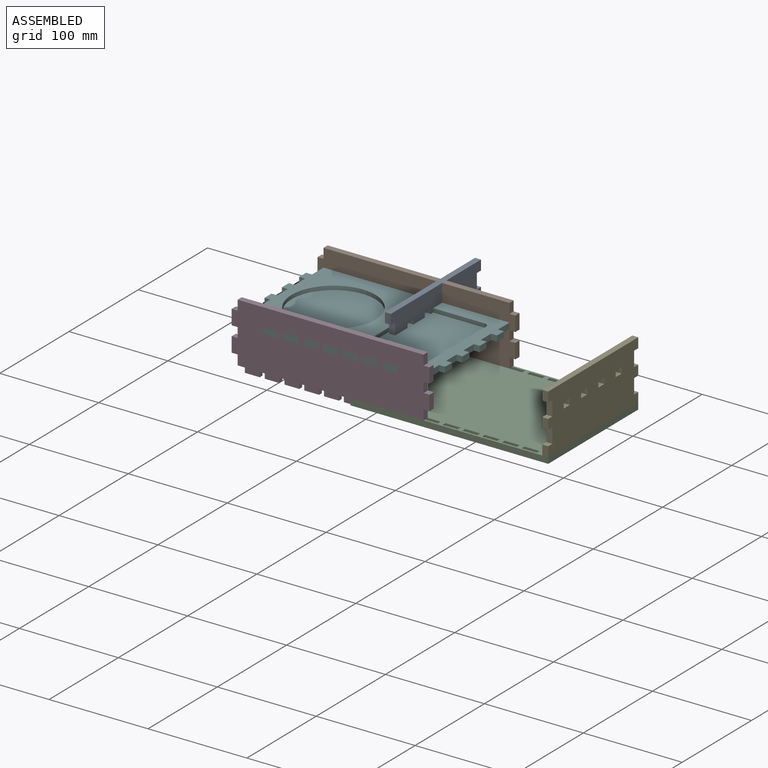
[diagram: assembled view]
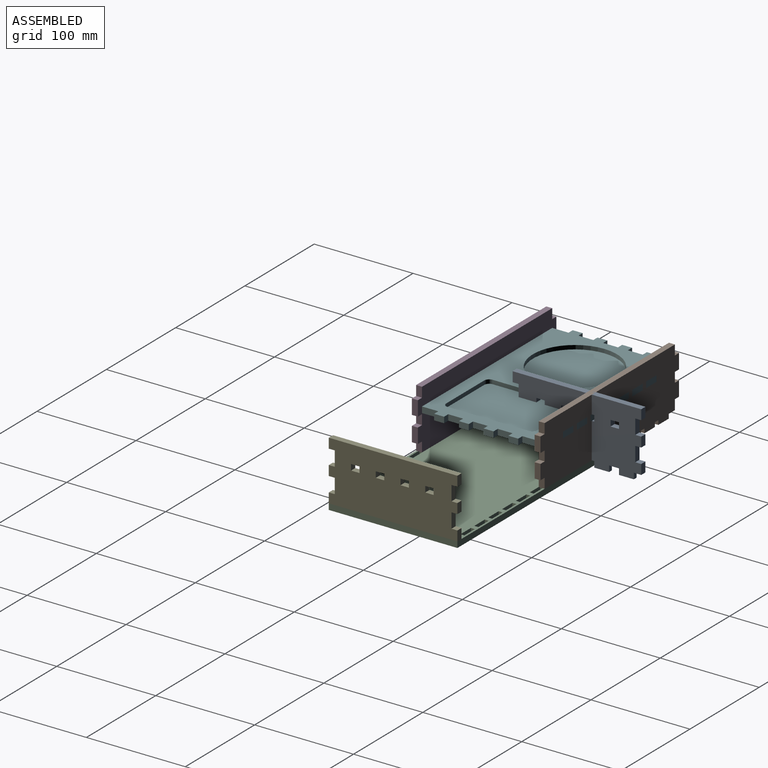
[diagram: assembled view, second angle]
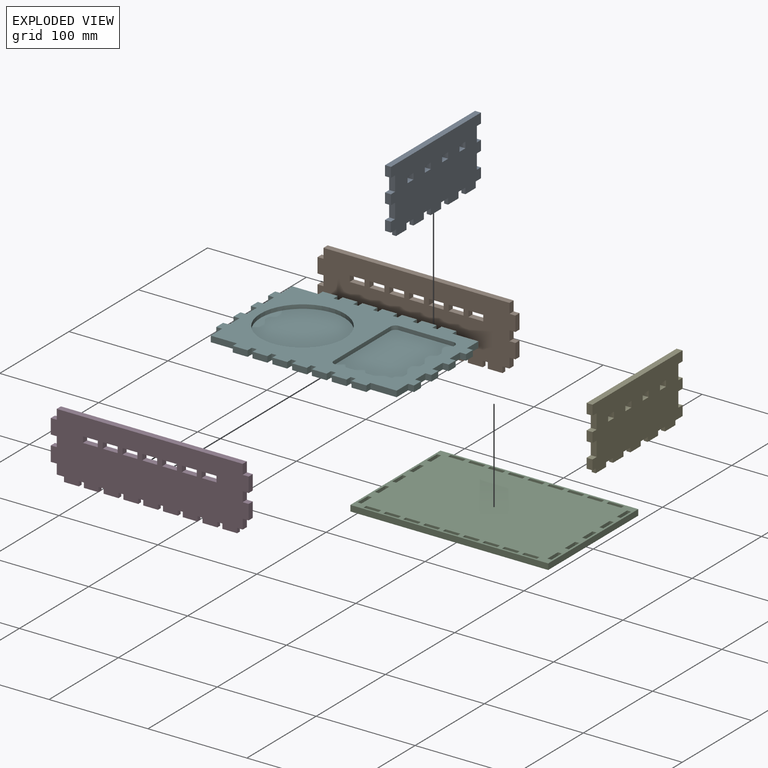
[diagram: exploded view]
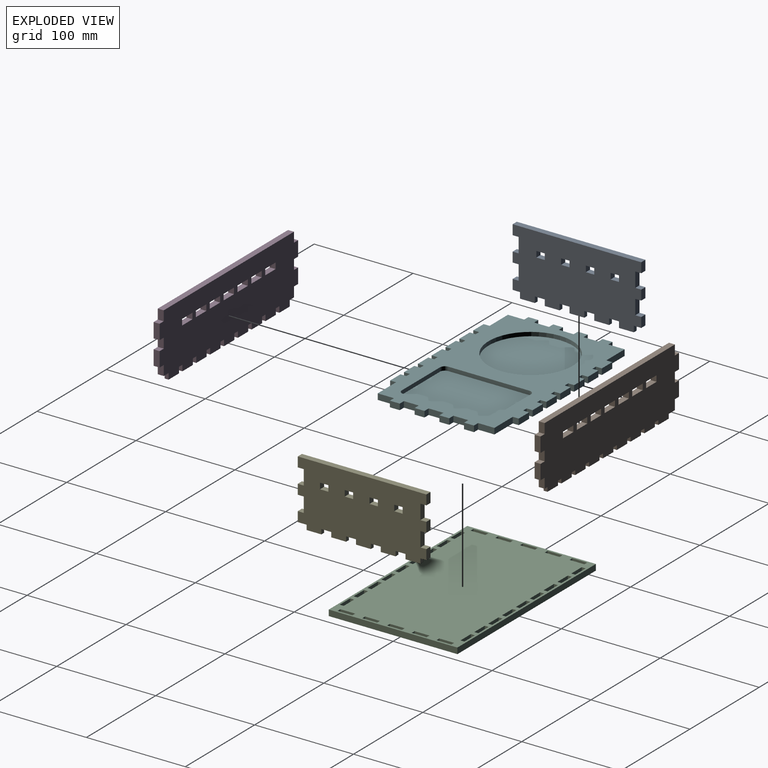
[diagram: exploded view, second angle]
ASSEMBLY  parts=6 mates=4
PART A: 58 faces, bbox 130x66x6 mm
  f0: plane 130x60mm, normal (0,0,-1), area 7236mm2, adj f1,f2,f3,f4,f5,f6,f7,f8
  f1: plane 6x6mm, normal (1,0,0), area 36mm2, adj f0,f2,f51,f52
  f2: plane 8.5x6mm, normal (0,-1,0), area 51mm2, adj f0,f1,f3,f52
  f3: plane 6x6mm, normal (-1,0,0), area 36mm2, adj f0,f2,f51,f52
  f4: plane 6x6mm, normal (1,0,0), area 36mm2, adj f0,f5,f47,f52
  f5: plane 8.5x6mm, normal (0,-1,0), area 51mm2, adj f0,f4,f6,f52
  f6: plane 6x6mm, normal (-1,0,0), area 36mm2, adj f0,f5,f47,f52
  f7: plane 6x6mm, normal (1,0,0), area 36mm2, adj f0,f8,f48,f52
  f8: plane 8.5x6mm, normal (0,-1,0), area 51mm2, adj f0,f7,f9,f52
  f9: plane 6x6mm, normal (-1,0,0), area 36mm2, adj f0,f8,f48,f52
  f10: plane 6x6mm, normal (1,0,0), area 36mm2, adj f0,f11,f49,f52
  f11: plane 8.5x6mm, normal (0,-1,0), area 51mm2, adj f0,f10,f12,f52
  f12: plane 6x6mm, normal (-1,0,0), area 36mm2, adj f0,f11,f49,f52
  f13: plane 15x6mm, normal (1,0,0), area 90mm2, adj f0,f14,f50,f52
  f14: plane 6x6mm, normal (0,-1,0), area 36mm2, adj f0,f13,f15,f52
  f15: plane 10x6mm, normal (1,0,0), area 60mm2, adj f0,f14,f16,f52
  f16: plane 130x6mm, normal (0,1,0), area 780mm2, adj f0,f15,f17,f52
  f17: plane 10x6mm, normal (-1,0,0), area 60mm2, adj f0,f16,f18,f52
  f18: plane 6x6mm, normal (0,-1,0), area 36mm2, adj f0,f17,f19,f52
  f19: plane 15x6mm, normal (-1,0,0), area 90mm2, adj f0,f18,f20,f52
  f20: plane 6x6mm, normal (0,1,0), area 36mm2, adj f0,f19,f21,f52
  f21: plane 10x6mm, normal (-1,0,0), area 60mm2, adj f0,f20,f22,f52
  f22: plane 6x6mm, normal (0,-1,0), area 36mm2, adj f0,f21,f23,f52
  f23: plane 15x6mm, normal (-1,0,0), area 90mm2, adj f0,f22,f24,f52
  f24: plane 6x6mm, normal (0,1,0), area 36mm2, adj f0,f23,f25,f52
  f25: plane 10x6mm, normal (-1,0,0), area 60mm2, adj f0,f24,f35,f52
  f26: plane 6x4mm, normal (-1,0,0), area 24mm2, adj f27,f35,f52,f57
  f27: plane 15x4mm, normal (0,-1,0), area 60mm2, adj f26,f28,f52,f57
  f28: plane 6x4mm, normal (1,0,0), area 24mm2, adj f27,f35,f52,f57
  f29: plane 6x4mm, normal (-1,0,0), area 24mm2, adj f30,f35,f52,f56
  f30: plane 15x4mm, normal (0,-1,0), area 60mm2, adj f29,f31,f52,f56
  f31: plane 6x4mm, normal (1,0,0), area 24mm2, adj f30,f35,f52,f56
  f32: plane 6x4mm, normal (-1,0,0), area 24mm2, adj f33,f35,f52,f55
  f33: plane 15x4mm, normal (0,-1,0), area 60mm2, adj f32,f34,f52,f55
  f34: plane 6x4mm, normal (1,0,0), area 24mm2, adj f33,f35,f52,f55
  f35: plane 130x6mm, normal (0,-1,0), area 480mm2, adj f0,f25,f26,f28,f29,f31,f32,f34
  f36: plane 6x4mm, normal (-1,0,0), area 24mm2, adj f35,f37,f52,f54
  f37: plane 15x4mm, normal (0,-1,0), area 60mm2, adj f36,f38,f52,f54
  f38: plane 6x4mm, normal (1,0,0), area 24mm2, adj f35,f37,f52,f54
  f39: plane 6x4mm, normal (-1,0,0), area 24mm2, adj f35,f40,f52,f53
  f40: plane 15x4mm, normal (0,-1,0), area 60mm2, adj f39,f41,f52,f53
  f41: plane 6x4mm, normal (1,0,0), area 24mm2, adj f35,f40,f52,f53
  f42: plane 10x6mm, normal (1,0,0), area 60mm2, adj f0,f35,f43,f52
  f43: plane 6x6mm, normal (0,1,0), area 36mm2, adj f0,f42,f44,f52
  f44: plane 15x6mm, normal (1,0,0), area 90mm2, adj f0,f43,f45,f52
  f45: plane 6x6mm, normal (0,-1,0), area 36mm2, adj f0,f44,f46,f52
  f46: plane 10x6mm, normal (1,0,0), area 60mm2, adj f0,f45,f50,f52
  f47: plane 8.5x6mm, normal (0,1,0), area 51mm2, adj f0,f4,f6,f52
  f48: plane 8.5x6mm, normal (0,1,0), area 51mm2, adj f0,f7,f9,f52
  f49: plane 8.5x6mm, normal (0,1,0), area 51mm2, adj f0,f10,f12,f52
  f50: plane 6x6mm, normal (0,1,0), area 36mm2, adj f0,f13,f46,f52
  f51: plane 8.5x6mm, normal (0,1,0), area 51mm2, adj f0,f1,f3,f52
  f52: plane 130x66mm, normal (0,0,1), area 7686mm2, adj f1,f2,f3,f4,f5,f6,f7,f8
  f53: plane 15x6mm, normal (0,0,-1), area 90mm2, adj f35,f39,f40,f41
  f54: plane 15x6mm, normal (0,0,-1), area 90mm2, adj f35,f36,f37,f38
  f55: plane 15x6mm, normal (0,0,-1), area 90mm2, adj f32,f33,f34,f35
  f56: plane 15x6mm, normal (0,0,-1), area 90mm2, adj f29,f30,f31,f35
  f57: plane 15x6mm, normal (0,0,-1), area 90mm2, adj f26,f27,f28,f35
PART B: 86 faces, bbox 200x66x6 mm
  f0: plane 200x60mm, normal (0,0,-1), area 11010mm2, adj f1,f2,f3,f4,f5,f6,f7,f8
  f1: plane 10x6mm, normal (1,0,0), area 60mm2, adj f0,f2,f75,f76
  f2: plane 188x6mm, normal (0,1,0), area 1128mm2, adj f0,f1,f3,f76
  f3: plane 10x6mm, normal (-1,0,0), area 60mm2, adj f0,f2,f4,f76
  f4: plane 6x6mm, normal (0,1,0), area 36mm2, adj f0,f3,f5,f76
  f5: plane 15x6mm, normal (-1,0,0), area 90mm2, adj f0,f4,f6,f76
  f6: plane 6x6mm, normal (0,-1,0), area 36mm2, adj f0,f5,f7,f76
  f7: plane 10x6mm, normal (-1,0,0), area 60mm2, adj f0,f6,f8,f76
  f8: plane 6x6mm, normal (0,1,0), area 36mm2, adj f0,f7,f9,f76
  f9: plane 15x6mm, normal (-1,0,0), area 90mm2, adj f0,f8,f10,f76
  f10: plane 6x6mm, normal (0,-1,0), area 36mm2, adj f0,f9,f11,f76
  f11: plane 10x6mm, normal (-1,0,0), area 60mm2, adj f0,f10,f39,f76
  f12: plane 6x4mm, normal (-1,0,0), area 24mm2, adj f13,f39,f76,f85
  f13: plane 15x4mm, normal (0,-1,0), area 60mm2, adj f12,f14,f76,f85
  f14: plane 6x4mm, normal (1,0,0), area 24mm2, adj f13,f39,f76,f85
  f15: plane 6x4mm, normal (-1,0,0), area 24mm2, adj f16,f39,f76,f84
  f16: plane 15x4mm, normal (0,-1,0), area 60mm2, adj f15,f17,f76,f84
  f17: plane 6x4mm, normal (1,0,0), area 24mm2, adj f16,f39,f76,f84
  f18: plane 6x4mm, normal (-1,0,0), area 24mm2, adj f19,f39,f76,f83
  f19: plane 15x4mm, normal (0,-1,0), area 60mm2, adj f18,f20,f76,f83
  f20: plane 6x4mm, normal (1,0,0), area 24mm2, adj f19,f39,f76,f83
  f21: plane 6x4mm, normal (-1,0,0), area 24mm2, adj f22,f39,f76,f82
  f22: plane 15x4mm, normal (0,-1,0), area 60mm2, adj f21,f23,f76,f82
  f23: plane 6x4mm, normal (1,0,0), area 24mm2, adj f22,f39,f76,f82
  f24: plane 6x4mm, normal (-1,0,0), area 24mm2, adj f25,f39,f76,f81
  f25: plane 15x4mm, normal (0,-1,0), area 60mm2, adj f24,f26,f76,f81
  f26: plane 6x4mm, normal (1,0,0), area 24mm2, adj f25,f39,f76,f81
  f27: plane 6x4mm, normal (-1,0,0), area 24mm2, adj f28,f39,f76,f79
  f28: plane 15x4mm, normal (0,-1,0), area 60mm2, adj f27,f29,f76,f79
  f29: plane 6x4mm, normal (1,0,0), area 24mm2, adj f28,f39,f76,f79
  f30: plane 6x4mm, normal (-1,0,0), area 24mm2, adj f31,f39,f76,f80
  f31: plane 15x4mm, normal (0,-1,0), area 60mm2, adj f30,f32,f76,f80
  f32: plane 6x4mm, normal (1,0,0), area 24mm2, adj f31,f39,f76,f80
  f33: plane 6x4mm, normal (-1,0,0), area 24mm2, adj f34,f39,f76,f78
  f34: plane 15x4mm, normal (0,-1,0), area 60mm2, adj f33,f35,f76,f78
  f35: plane 6x4mm, normal (1,0,0), area 24mm2, adj f34,f39,f76,f78
  f36: plane 6x4mm, normal (-1,0,0), area 24mm2, adj f37,f39,f76,f77
  f37: plane 15x4mm, normal (0,-1,0), area 60mm2, adj f36,f38,f76,f77
  f38: plane 6x4mm, normal (1,0,0), area 24mm2, adj f37,f39,f76,f77
  f39: plane 188x6mm, normal (0,-1,0), area 588mm2, adj f0,f11,f12,f14,f15,f17,f18,f20
  f40: plane 10x6mm, normal (1,0,0), area 60mm2, adj f0,f39,f41,f76
  f41: plane 6x6mm, normal (0,-1,0), area 36mm2, adj f0,f40,f42,f76
  f42: plane 15x6mm, normal (1,0,0), area 90mm2, adj f0,f41,f43,f76
  f43: plane 6x6mm, normal (0,1,0), area 36mm2, adj f0,f42,f44,f76
  f44: plane 10x6mm, normal (1,0,0), area 60mm2, adj f0,f43,f45,f76
  f45: plane 6x6mm, normal (0,-1,0), area 36mm2, adj f0,f44,f46,f76
  f46: plane 15x6mm, normal (1,0,0), area 90mm2, adj f0,f45,f75,f76
  f47: plane 6x6mm, normal (1,0,0), area 36mm2, adj f0,f48,f68,f76
  f48: plane 15x6mm, normal (0,-1,0), area 90mm2, adj f0,f47,f49,f76
  f49: plane 6x6mm, normal (-1,0,0), area 36mm2, adj f0,f48,f68,f76
  f50: plane 6x6mm, normal (1,0,0), area 36mm2, adj f0,f51,f69,f76
  f51: plane 15x6mm, normal (0,-1,0), area 90mm2, adj f0,f50,f52,f76
  f52: plane 6x6mm, normal (-1,0,0), area 36mm2, adj f0,f51,f69,f76
  f53: plane 6x6mm, normal (1,0,0), area 36mm2, adj f0,f54,f70,f76
  f54: plane 15x6mm, normal (0,-1,0), area 90mm2, adj f0,f53,f55,f76
  f55: plane 6x6mm, normal (-1,0,0), area 36mm2, adj f0,f54,f70,f76
  f56: plane 6x6mm, normal (1,0,0), area 36mm2, adj f0,f57,f71,f76
  f57: plane 15x6mm, normal (0,-1,0), area 90mm2, adj f0,f56,f58,f76
  f58: plane 6x6mm, normal (-1,0,0), area 36mm2, adj f0,f57,f71,f76
  f59: plane 6x6mm, normal (1,0,0), area 36mm2, adj f0,f60,f72,f76
  f60: plane 15x6mm, normal (0,-1,0), area 90mm2, adj f0,f59,f61,f76
  f61: plane 6x6mm, normal (-1,0,0), area 36mm2, adj f0,f60,f72,f76
  f62: plane 6x6mm, normal (1,0,0), area 36mm2, adj f0,f63,f73,f76
  f63: plane 15x6mm, normal (0,-1,0), area 90mm2, adj f0,f62,f64,f76
  f64: plane 6x6mm, normal (-1,0,0), area 36mm2, adj f0,f63,f73,f76
  f65: plane 6x6mm, normal (1,0,0), area 36mm2, adj f0,f66,f74,f76
  f66: plane 15x6mm, normal (0,-1,0), area 90mm2, adj f0,f65,f67,f76
  f67: plane 6x6mm, normal (-1,0,0), area 36mm2, adj f0,f66,f74,f76
  f68: plane 15x6mm, normal (0,1,0), area 90mm2, adj f0,f47,f49,f76
  f69: plane 15x6mm, normal (0,1,0), area 90mm2, adj f0,f50,f52,f76
  f70: plane 15x6mm, normal (0,1,0), area 90mm2, adj f0,f53,f55,f76
  f71: plane 15x6mm, normal (0,1,0), area 90mm2, adj f0,f56,f58,f76
  f72: plane 15x6mm, normal (0,1,0), area 90mm2, adj f0,f59,f61,f76
  f73: plane 15x6mm, normal (0,1,0), area 90mm2, adj f0,f62,f64,f76
  f74: plane 15x6mm, normal (0,1,0), area 90mm2, adj f0,f65,f67,f76
  f75: plane 6x6mm, normal (0,1,0), area 36mm2, adj f0,f1,f46,f76
  f76: plane 200x66mm, normal (0,0,1), area 11820mm2, adj f1,f2,f3,f4,f5,f6,f7,f8
  f77: plane 15x6mm, normal (0,0,-1), area 90mm2, adj f36,f37,f38,f39
  f78: plane 15x6mm, normal (0,0,-1), area 90mm2, adj f33,f34,f35,f39
  f79: plane 15x6mm, normal (0,0,-1), area 90mm2, adj f27,f28,f29,f39
  f80: plane 15x6mm, normal (0,0,-1), area 90mm2, adj f30,f31,f32,f39
  f81: plane 15x6mm, normal (0,0,-1), area 90mm2, adj f24,f25,f26,f39
  f82: plane 15x6mm, normal (0,0,-1), area 90mm2, adj f21,f22,f23,f39
  f83: plane 15x6mm, normal (0,0,-1), area 90mm2, adj f18,f19,f20,f39
  f84: plane 15x6mm, normal (0,0,-1), area 90mm2, adj f15,f16,f17,f39
  f85: plane 15x6mm, normal (0,0,-1), area 90mm2, adj f12,f13,f14,f39
PART C: 118 faces, bbox 200x130x6 mm
  f0: plane 200x6mm, normal (0,1,0), area 1200mm2, adj f1,f115,f116,f117
  f1: plane 130x6mm, normal (-1,0,0), area 780mm2, adj f0,f2,f116,f117
  f2: plane 200x6mm, normal (0,-1,0), area 1200mm2, adj f1,f115,f116,f117
  f3: plane 15x6mm, normal (1,0,0), area 90mm2, adj f4,f87,f116,f117
  f4: plane 6x4mm, normal (0,-1,0), area 24mm2, adj f3,f5,f116,f117
  f5: plane 15x6mm, normal (-1,0,0), area 90mm2, adj f4,f87,f116,f117
  f6: plane 6x4mm, normal (0,-1,0), area 24mm2, adj f7,f88,f116,f117
  f7: plane 15x6mm, normal (-1,0,0), area 90mm2, adj f6,f8,f116,f117
  f8: plane 6x4mm, normal (0,1,0), area 24mm2, adj f7,f88,f116,f117
  f9: plane 6x4mm, normal (1,0,0), area 24mm2, adj f10,f89,f116,f117
  f10: plane 15x6mm, normal (0,-1,0), area 90mm2, adj f9,f11,f116,f117
  f11: plane 6x4mm, normal (-1,0,0), area 24mm2, adj f10,f89,f116,f117
  f12: plane 15x6mm, normal (0,1,0), area 90mm2, adj f13,f90,f116,f117
  f13: plane 6x4mm, normal (1,0,0), area 24mm2, adj f12,f14,f116,f117
  f14: plane 15x6mm, normal (0,-1,0), area 90mm2, adj f13,f90,f116,f117
  f15: plane 15x6mm, normal (0,1,0), area 90mm2, adj f16,f91,f116,f117
  f16: plane 6x4mm, normal (1,0,0), area 24mm2, adj f15,f17,f116,f117
  f17: plane 15x6mm, normal (0,-1,0), area 90mm2, adj f16,f91,f116,f117
  f18: plane 15x6mm, normal (0,1,0), area 90mm2, adj f19,f92,f116,f117
  f19: plane 6x4mm, normal (1,0,0), area 24mm2, adj f18,f20,f116,f117
  f20: plane 15x6mm, normal (0,-1,0), area 90mm2, adj f19,f92,f116,f117
  f21: plane 15x6mm, normal (0,1,0), area 90mm2, adj f22,f93,f116,f117
  f22: plane 6x4mm, normal (1,0,0), area 24mm2, adj f21,f23,f116,f117
  f23: plane 15x6mm, normal (0,-1,0), area 90mm2, adj f22,f93,f116,f117
  f24: plane 15x6mm, normal (0,1,0), area 90mm2, adj f25,f94,f116,f117
  f25: plane 6x4mm, normal (1,0,0), area 24mm2, adj f24,f26,f116,f117
  f26: plane 15x6mm, normal (0,-1,0), area 90mm2, adj f25,f94,f116,f117
  f27: plane 15x6mm, normal (0,1,0), area 90mm2, adj f28,f95,f116,f117
  f28: plane 6x4mm, normal (1,0,0), area 24mm2, adj f27,f29,f116,f117
  f29: plane 15x6mm, normal (0,-1,0), area 90mm2, adj f28,f95,f116,f117
  f30: plane 15x6mm, normal (1,0,0), area 90mm2, adj f31,f96,f116,f117
  f31: plane 6x4mm, normal (0,-1,0), area 24mm2, adj f30,f32,f116,f117
  f32: plane 15x6mm, normal (-1,0,0), area 90mm2, adj f31,f96,f116,f117
  f33: plane 15x6mm, normal (1,0,0), area 90mm2, adj f34,f97,f116,f117
  f34: plane 6x4mm, normal (0,-1,0), area 24mm2, adj f33,f35,f116,f117
  f35: plane 15x6mm, normal (-1,0,0), area 90mm2, adj f34,f97,f116,f117
  f36: plane 15x6mm, normal (1,0,0), area 90mm2, adj f37,f98,f116,f117
  f37: plane 6x4mm, normal (0,-1,0), area 24mm2, adj f36,f38,f116,f117
  f38: plane 15x6mm, normal (-1,0,0), area 90mm2, adj f37,f98,f116,f117
  f39: plane 15x6mm, normal (1,0,0), area 90mm2, adj f40,f99,f116,f117
  f40: plane 6x4mm, normal (0,-1,0), area 24mm2, adj f39,f41,f116,f117
  f41: plane 15x6mm, normal (-1,0,0), area 90mm2, adj f40,f99,f116,f117
  f42: plane 15x6mm, normal (0,1,0), area 90mm2, adj f43,f100,f116,f117
  f43: plane 6x4mm, normal (1,0,0), area 24mm2, adj f42,f44,f116,f117
  f44: plane 15x6mm, normal (0,-1,0), area 90mm2, adj f43,f100,f116,f117
  f45: plane 15x6mm, normal (1,0,0), area 90mm2, adj f46,f101,f116,f117
  f46: plane 6x4mm, normal (0,-1,0), area 24mm2, adj f45,f47,f116,f117
  f47: plane 15x6mm, normal (-1,0,0), area 90mm2, adj f46,f101,f116,f117
  f48: plane 6x4mm, normal (1,0,0), area 24mm2, adj f49,f102,f116,f117
  f49: plane 15x6mm, normal (0,-1,0), area 90mm2, adj f48,f50,f116,f117
  f50: plane 6x4mm, normal (-1,0,0), area 24mm2, adj f49,f102,f116,f117
  f51: plane 6x4mm, normal (1,0,0), area 24mm2, adj f52,f103,f116,f117
  f52: plane 15x6mm, normal (0,-1,0), area 90mm2, adj f51,f53,f116,f117
  f53: plane 6x4mm, normal (-1,0,0), area 24mm2, adj f52,f103,f116,f117
  f54: plane 6x4mm, normal (1,0,0), area 24mm2, adj f55,f104,f116,f117
  f55: plane 15x6mm, normal (0,-1,0), area 90mm2, adj f54,f56,f116,f117
  f56: plane 6x4mm, normal (-1,0,0), area 24mm2, adj f55,f104,f116,f117
  f57: plane 6x4mm, normal (1,0,0), area 24mm2, adj f58,f105,f116,f117
  f58: plane 15x6mm, normal (0,-1,0), area 90mm2, adj f57,f59,f116,f117
  f59: plane 6x4mm, normal (-1,0,0), area 24mm2, adj f58,f105,f116,f117
  f60: plane 6x4mm, normal (1,0,0), area 24mm2, adj f61,f106,f116,f117
  f61: plane 15x6mm, normal (0,-1,0), area 90mm2, adj f60,f62,f116,f117
  f62: plane 6x4mm, normal (-1,0,0), area 24mm2, adj f61,f106,f116,f117
  f63: plane 6x4mm, normal (1,0,0), area 24mm2, adj f64,f107,f116,f117
  f64: plane 15x6mm, normal (0,-1,0), area 90mm2, adj f63,f65,f116,f117
  f65: plane 6x4mm, normal (-1,0,0), area 24mm2, adj f64,f107,f116,f117
  f66: plane 6x4mm, normal (1,0,0), area 24mm2, adj f67,f108,f116,f117
  f67: plane 15x6mm, normal (0,-1,0), area 90mm2, adj f66,f68,f116,f117
  f68: plane 6x4mm, normal (-1,0,0), area 24mm2, adj f67,f108,f116,f117
  f69: plane 6x4mm, normal (0,-1,0), area 24mm2, adj f70,f109,f116,f117
  f70: plane 15x6mm, normal (-1,0,0), area 90mm2, adj f69,f71,f116,f117
  f71: plane 6x4mm, normal (0,1,0), area 24mm2, adj f70,f109,f116,f117
  f72: plane 6x4mm, normal (0,-1,0), area 24mm2, adj f73,f110,f116,f117
  f73: plane 15x6mm, normal (-1,0,0), area 90mm2, adj f72,f74,f116,f117
  f74: plane 6x4mm, normal (0,1,0), area 24mm2, adj f73,f110,f116,f117
  f75: plane 6x4mm, normal (0,-1,0), area 24mm2, adj f76,f111,f116,f117
  f76: plane 15x6mm, normal (-1,0,0), area 90mm2, adj f75,f77,f116,f117
  f77: plane 6x4mm, normal (0,1,0), area 24mm2, adj f76,f111,f116,f117
  f78: plane 6x4mm, normal (1,0,0), area 24mm2, adj f79,f112,f116,f117
  f79: plane 15x6mm, normal (0,-1,0), area 90mm2, adj f78,f80,f116,f117
  f80: plane 6x4mm, normal (-1,0,0), area 24mm2, adj f79,f112,f116,f117
  f81: plane 6x4mm, normal (1,0,0), area 24mm2, adj f82,f113,f116,f117
  f82: plane 15x6mm, normal (0,-1,0), area 90mm2, adj f81,f83,f116,f117
  f83: plane 6x4mm, normal (-1,0,0), area 24mm2, adj f82,f113,f116,f117
  f84: plane 6x4mm, normal (1,0,0), area 24mm2, adj f85,f114,f116,f117
  f85: plane 15x6mm, normal (0,-1,0), area 90mm2, adj f84,f86,f116,f117
  f86: plane 6x4mm, normal (-1,0,0), area 24mm2, adj f85,f114,f116,f117
  f87: plane 6x4mm, normal (0,1,0), area 24mm2, adj f3,f5,f116,f117
  f88: plane 15x6mm, normal (1,0,0), area 90mm2, adj f6,f8,f116,f117
  f89: plane 15x6mm, normal (0,1,0), area 90mm2, adj f9,f11,f116,f117
  f90: plane 6x4mm, normal (-1,0,0), area 24mm2, adj f12,f14,f116,f117
  f91: plane 6x4mm, normal (-1,0,0), area 24mm2, adj f15,f17,f116,f117
  f92: plane 6x4mm, normal (-1,0,0), area 24mm2, adj f18,f20,f116,f117
  f93: plane 6x4mm, normal (-1,0,0), area 24mm2, adj f21,f23,f116,f117
  f94: plane 6x4mm, normal (-1,0,0), area 24mm2, adj f24,f26,f116,f117
  f95: plane 6x4mm, normal (-1,0,0), area 24mm2, adj f27,f29,f116,f117
  f96: plane 6x4mm, normal (0,1,0), area 24mm2, adj f30,f32,f116,f117
  f97: plane 6x4mm, normal (0,1,0), area 24mm2, adj f33,f35,f116,f117
  f98: plane 6x4mm, normal (0,1,0), area 24mm2, adj f36,f38,f116,f117
  f99: plane 6x4mm, normal (0,1,0), area 24mm2, adj f39,f41,f116,f117
  f100: plane 6x4mm, normal (-1,0,0), area 24mm2, adj f42,f44,f116,f117
  f101: plane 6x4mm, normal (0,1,0), area 24mm2, adj f45,f47,f116,f117
  f102: plane 15x6mm, normal (0,1,0), area 90mm2, adj f48,f50,f116,f117
  f103: plane 15x6mm, normal (0,1,0), area 90mm2, adj f51,f53,f116,f117
  f104: plane 15x6mm, normal (0,1,0), area 90mm2, adj f54,f56,f116,f117
  f105: plane 15x6mm, normal (0,1,0), area 90mm2, adj f57,f59,f116,f117
  f106: plane 15x6mm, normal (0,1,0), area 90mm2, adj f60,f62,f116,f117
  f107: plane 15x6mm, normal (0,1,0), area 90mm2, adj f63,f65,f116,f117
  f108: plane 15x6mm, normal (0,1,0), area 90mm2, adj f66,f68,f116,f117
  f109: plane 15x6mm, normal (1,0,0), area 90mm2, adj f69,f71,f116,f117
  f110: plane 15x6mm, normal (1,0,0), area 90mm2, adj f72,f74,f116,f117
  f111: plane 15x6mm, normal (1,0,0), area 90mm2, adj f75,f77,f116,f117
  f112: plane 15x6mm, normal (0,1,0), area 90mm2, adj f78,f80,f116,f117
  f113: plane 15x6mm, normal (0,1,0), area 90mm2, adj f81,f83,f116,f117
  f114: plane 15x6mm, normal (0,1,0), area 90mm2, adj f84,f86,f116,f117
  f115: plane 130x6mm, normal (1,0,0), area 780mm2, adj f0,f2,f116,f117
  f116: plane 200x130mm, normal (0,0,1), area 24320mm2, adj f0,f1,f2,f3,f4,f5,f6,f7
  f117: plane 200x130mm, normal (0,0,-1), area 24320mm2, adj f0,f1,f2,f3,f4,f5,f6,f7
PART D: 86 faces, bbox 200x66x6 mm
  f0: plane 6x4mm, normal (-1,0,0), area 24mm2, adj f1,f39,f76,f85
  f1: plane 15x4mm, normal (0,-1,0), area 60mm2, adj f0,f2,f76,f85
  f2: plane 6x4mm, normal (1,0,0), area 24mm2, adj f1,f39,f76,f85
  f3: plane 6x4mm, normal (-1,0,0), area 24mm2, adj f4,f39,f76,f84
  f4: plane 15x4mm, normal (0,-1,0), area 60mm2, adj f3,f5,f76,f84
  f5: plane 6x4mm, normal (1,0,0), area 24mm2, adj f4,f39,f76,f84
  f6: plane 6x4mm, normal (-1,0,0), area 24mm2, adj f7,f39,f76,f83
  f7: plane 15x4mm, normal (0,-1,0), area 60mm2, adj f6,f8,f76,f83
  f8: plane 6x4mm, normal (1,0,0), area 24mm2, adj f7,f39,f76,f83
  f9: plane 6x4mm, normal (-1,0,0), area 24mm2, adj f10,f39,f76,f82
  f10: plane 15x4mm, normal (0,-1,0), area 60mm2, adj f9,f11,f76,f82
  f11: plane 6x4mm, normal (1,0,0), area 24mm2, adj f10,f39,f76,f82
  f12: plane 6x4mm, normal (-1,0,0), area 24mm2, adj f13,f39,f76,f81
  f13: plane 15x4mm, normal (0,-1,0), area 60mm2, adj f12,f14,f76,f81
  f14: plane 6x4mm, normal (1,0,0), area 24mm2, adj f13,f39,f76,f81
  f15: plane 6x4mm, normal (-1,0,0), area 24mm2, adj f16,f39,f76,f79
  f16: plane 15x4mm, normal (0,-1,0), area 60mm2, adj f15,f17,f76,f79
  f17: plane 6x4mm, normal (1,0,0), area 24mm2, adj f16,f39,f76,f79
  f18: plane 6x4mm, normal (-1,0,0), area 24mm2, adj f19,f39,f76,f80
  f19: plane 15x4mm, normal (0,-1,0), area 60mm2, adj f18,f20,f76,f80
  f20: plane 6x4mm, normal (1,0,0), area 24mm2, adj f19,f39,f76,f80
  f21: plane 6x4mm, normal (-1,0,0), area 24mm2, adj f22,f39,f76,f78
  f22: plane 15x4mm, normal (0,-1,0), area 60mm2, adj f21,f23,f76,f78
  f23: plane 6x4mm, normal (1,0,0), area 24mm2, adj f22,f39,f76,f78
  f24: plane 6x4mm, normal (-1,0,0), area 24mm2, adj f25,f39,f76,f77
  f25: plane 15x4mm, normal (0,-1,0), area 60mm2, adj f24,f26,f76,f77
  f26: plane 6x4mm, normal (1,0,0), area 24mm2, adj f25,f39,f76,f77
  f27: plane 200x60mm, normal (0,0,1), area 11010mm2, adj f28,f29,f30,f31,f32,f33,f34,f35
  f28: plane 10x6mm, normal (1,0,0), area 60mm2, adj f27,f29,f75,f76
  f29: plane 188x6mm, normal (0,1,0), area 1128mm2, adj f27,f28,f30,f76
  f30: plane 10x6mm, normal (-1,0,0), area 60mm2, adj f27,f29,f31,f76
  f31: plane 6x6mm, normal (0,1,0), area 36mm2, adj f27,f30,f32,f76
  f32: plane 15x6mm, normal (-1,0,0), area 90mm2, adj f27,f31,f33,f76
  f33: plane 6x6mm, normal (0,-1,0), area 36mm2, adj f27,f32,f34,f76
  f34: plane 10x6mm, normal (-1,0,0), area 60mm2, adj f27,f33,f35,f76
  f35: plane 6x6mm, normal (0,1,0), area 36mm2, adj f27,f34,f36,f76
  f36: plane 15x6mm, normal (-1,0,0), area 90mm2, adj f27,f35,f37,f76
  f37: plane 6x6mm, normal (0,-1,0), area 36mm2, adj f27,f36,f38,f76
  f38: plane 10x6mm, normal (-1,0,0), area 60mm2, adj f27,f37,f39,f76
  f39: plane 188x6mm, normal (0,-1,0), area 588mm2, adj f0,f2,f3,f5,f6,f8,f9,f11
  f40: plane 10x6mm, normal (1,0,0), area 60mm2, adj f27,f39,f41,f76
  f41: plane 6x6mm, normal (0,-1,0), area 36mm2, adj f27,f40,f42,f76
  f42: plane 15x6mm, normal (1,0,0), area 90mm2, adj f27,f41,f43,f76
  f43: plane 6x6mm, normal (0,1,0), area 36mm2, adj f27,f42,f44,f76
  f44: plane 10x6mm, normal (1,0,0), area 60mm2, adj f27,f43,f45,f76
  f45: plane 6x6mm, normal (0,-1,0), area 36mm2, adj f27,f44,f46,f76
  f46: plane 15x6mm, normal (1,0,0), area 90mm2, adj f27,f45,f75,f76
  f47: plane 6x6mm, normal (1,0,0), area 36mm2, adj f27,f48,f68,f76
  f48: plane 15x6mm, normal (0,-1,0), area 90mm2, adj f27,f47,f49,f76
  f49: plane 6x6mm, normal (-1,0,0), area 36mm2, adj f27,f48,f68,f76
  f50: plane 6x6mm, normal (1,0,0), area 36mm2, adj f27,f51,f69,f76
  f51: plane 15x6mm, normal (0,-1,0), area 90mm2, adj f27,f50,f52,f76
  f52: plane 6x6mm, normal (-1,0,0), area 36mm2, adj f27,f51,f69,f76
  f53: plane 6x6mm, normal (1,0,0), area 36mm2, adj f27,f54,f70,f76
  f54: plane 15x6mm, normal (0,-1,0), area 90mm2, adj f27,f53,f55,f76
  f55: plane 6x6mm, normal (-1,0,0), area 36mm2, adj f27,f54,f70,f76
  f56: plane 6x6mm, normal (1,0,0), area 36mm2, adj f27,f57,f71,f76
  f57: plane 15x6mm, normal (0,-1,0), area 90mm2, adj f27,f56,f58,f76
  f58: plane 6x6mm, normal (-1,0,0), area 36mm2, adj f27,f57,f71,f76
  f59: plane 6x6mm, normal (1,0,0), area 36mm2, adj f27,f60,f72,f76
  f60: plane 15x6mm, normal (0,-1,0), area 90mm2, adj f27,f59,f61,f76
  f61: plane 6x6mm, normal (-1,0,0), area 36mm2, adj f27,f60,f72,f76
  f62: plane 6x6mm, normal (1,0,0), area 36mm2, adj f27,f63,f73,f76
  f63: plane 15x6mm, normal (0,-1,0), area 90mm2, adj f27,f62,f64,f76
  f64: plane 6x6mm, normal (-1,0,0), area 36mm2, adj f27,f63,f73,f76
  f65: plane 6x6mm, normal (1,0,0), area 36mm2, adj f27,f66,f74,f76
  f66: plane 15x6mm, normal (0,-1,0), area 90mm2, adj f27,f65,f67,f76
  f67: plane 6x6mm, normal (-1,0,0), area 36mm2, adj f27,f66,f74,f76
  f68: plane 15x6mm, normal (0,1,0), area 90mm2, adj f27,f47,f49,f76
  f69: plane 15x6mm, normal (0,1,0), area 90mm2, adj f27,f50,f52,f76
  f70: plane 15x6mm, normal (0,1,0), area 90mm2, adj f27,f53,f55,f76
  f71: plane 15x6mm, normal (0,1,0), area 90mm2, adj f27,f56,f58,f76
  f72: plane 15x6mm, normal (0,1,0), area 90mm2, adj f27,f59,f61,f76
  f73: plane 15x6mm, normal (0,1,0), area 90mm2, adj f27,f62,f64,f76
  f74: plane 15x6mm, normal (0,1,0), area 90mm2, adj f27,f65,f67,f76
  f75: plane 6x6mm, normal (0,1,0), area 36mm2, adj f27,f28,f46,f76
  f76: plane 200x66mm, normal (0,0,-1), area 11820mm2, adj f0,f1,f2,f3,f4,f5,f6,f7
  f77: plane 15x6mm, normal (0,0,1), area 90mm2, adj f24,f25,f26,f39
  f78: plane 15x6mm, normal (0,0,1), area 90mm2, adj f21,f22,f23,f39
  f79: plane 15x6mm, normal (0,0,1), area 90mm2, adj f15,f16,f17,f39
  f80: plane 15x6mm, normal (0,0,1), area 90mm2, adj f18,f19,f20,f39
  f81: plane 15x6mm, normal (0,0,1), area 90mm2, adj f12,f13,f14,f39
  f82: plane 15x6mm, normal (0,0,1), area 90mm2, adj f9,f10,f11,f39
  f83: plane 15x6mm, normal (0,0,1), area 90mm2, adj f6,f7,f8,f39
  f84: plane 15x6mm, normal (0,0,1), area 90mm2, adj f3,f4,f5,f39
  f85: plane 15x6mm, normal (0,0,1), area 90mm2, adj f0,f1,f2,f39
PART E: same geometry as A
PART F: 105 faces, bbox 200x130x6 mm
  f0: plane 200x130mm, normal (0,0,1), area 12291mm2, adj f1,f2,f3,f4,f5,f6,f7,f8
  f1: plane 6x6mm, normal (0,-1,0), area 36mm2, adj f0,f2,f92,f93
  f2: plane 16.5x6mm, normal (-1,0,0), area 99mm2, adj f0,f1,f3,f93
  f3: plane 26.5x6mm, normal (0,-1,0), area 159mm2, adj f0,f2,f4,f93
  f4: plane 6x6mm, normal (-1,0,0), area 36mm2, adj f0,f3,f5,f93
  f5: plane 15x6mm, normal (0,-1,0), area 90mm2, adj f0,f4,f6,f93
  f6: plane 6x6mm, normal (1,0,0), area 36mm2, adj f0,f5,f7,f93
  f7: plane 6x5mm, normal (0,-1,0), area 30mm2, adj f0,f6,f8,f93
  f8: plane 6x6mm, normal (-1,0,0), area 36mm2, adj f0,f7,f9,f93
  f9: plane 15x6mm, normal (0,-1,0), area 90mm2, adj f0,f8,f10,f93
  f10: plane 6x6mm, normal (1,0,0), area 36mm2, adj f0,f9,f11,f93
  f11: plane 6x5mm, normal (0,-1,0), area 30mm2, adj f0,f10,f12,f93
  f12: plane 6x6mm, normal (-1,0,0), area 36mm2, adj f0,f11,f13,f93
  f13: plane 15x6mm, normal (0,-1,0), area 90mm2, adj f0,f12,f14,f93
  f14: plane 6x6mm, normal (1,0,0), area 36mm2, adj f0,f13,f15,f93
  f15: plane 6x5mm, normal (0,-1,0), area 30mm2, adj f0,f14,f16,f93
  f16: plane 6x6mm, normal (-1,0,0), area 36mm2, adj f0,f15,f17,f93
  f17: plane 15x6mm, normal (0,-1,0), area 90mm2, adj f0,f16,f18,f93
  f18: plane 6x6mm, normal (1,0,0), area 36mm2, adj f0,f17,f19,f93
  f19: plane 6x5mm, normal (0,-1,0), area 30mm2, adj f0,f18,f20,f93
  f20: plane 6x6mm, normal (-1,0,0), area 36mm2, adj f0,f19,f21,f93
  f21: plane 15x6mm, normal (0,-1,0), area 90mm2, adj f0,f20,f22,f93
  f22: plane 6x6mm, normal (1,0,0), area 36mm2, adj f0,f21,f23,f93
  f23: plane 6x5mm, normal (0,-1,0), area 30mm2, adj f0,f22,f24,f93
  f24: plane 6x6mm, normal (-1,0,0), area 36mm2, adj f0,f23,f25,f93
  f25: plane 15x6mm, normal (0,-1,0), area 90mm2, adj f0,f24,f26,f93
  f26: plane 6x6mm, normal (1,0,0), area 36mm2, adj f0,f25,f27,f93
  f27: plane 6x5mm, normal (0,-1,0), area 30mm2, adj f0,f26,f28,f93
  f28: plane 6x6mm, normal (-1,0,0), area 36mm2, adj f0,f27,f29,f93
  f29: plane 15x6mm, normal (0,-1,0), area 90mm2, adj f0,f28,f30,f93
  f30: plane 6x6mm, normal (1,0,0), area 36mm2, adj f0,f29,f31,f93
  f31: plane 26.5x6mm, normal (0,-1,0), area 159mm2, adj f0,f30,f32,f93
  f32: plane 16.5x6mm, normal (1,0,0), area 99mm2, adj f0,f31,f33,f93
  f33: plane 6x6mm, normal (0,-1,0), area 36mm2, adj f0,f32,f34,f93
  f34: plane 10x6mm, normal (1,0,0), area 60mm2, adj f0,f33,f35,f93
  f35: plane 6x6mm, normal (0,1,0), area 36mm2, adj f0,f34,f36,f93
  f36: plane 15x6mm, normal (1,0,0), area 90mm2, adj f0,f35,f37,f93
  f37: plane 6x6mm, normal (0,-1,0), area 36mm2, adj f0,f36,f38,f93
  f38: plane 10x6mm, normal (1,0,0), area 60mm2, adj f0,f37,f39,f93
  f39: plane 6x6mm, normal (0,1,0), area 36mm2, adj f0,f38,f40,f93
  f40: plane 15x6mm, normal (1,0,0), area 90mm2, adj f0,f39,f41,f93
  f41: plane 6x6mm, normal (0,-1,0), area 36mm2, adj f0,f40,f42,f93
  f42: plane 10x6mm, normal (1,0,0), area 60mm2, adj f0,f41,f43,f93
  f43: plane 6x6mm, normal (0,1,0), area 36mm2, adj f0,f42,f44,f93
  f44: plane 15x6mm, normal (1,0,0), area 90mm2, adj f0,f43,f45,f93
  f45: plane 6x6mm, normal (0,-1,0), area 36mm2, adj f0,f44,f46,f93
  f46: plane 10x6mm, normal (1,0,0), area 60mm2, adj f0,f45,f47,f93
  f47: plane 6x6mm, normal (0,1,0), area 36mm2, adj f0,f46,f48,f93
  f48: plane 16.5x6mm, normal (1,0,0), area 99mm2, adj f0,f47,f49,f93
  f49: plane 26.5x6mm, normal (0,1,0), area 159mm2, adj f0,f48,f50,f93
  f50: plane 6x6mm, normal (1,0,0), area 36mm2, adj f0,f49,f51,f93
  f51: plane 15x6mm, normal (0,1,0), area 90mm2, adj f0,f50,f52,f93
  f52: plane 6x6mm, normal (-1,0,0), area 36mm2, adj f0,f51,f53,f93
  f53: plane 6x5mm, normal (0,1,0), area 30mm2, adj f0,f52,f54,f93
  f54: plane 6x6mm, normal (1,0,0), area 36mm2, adj f0,f53,f55,f93
  f55: plane 15x6mm, normal (0,1,0), area 90mm2, adj f0,f54,f56,f93
  f56: plane 6x6mm, normal (-1,0,0), area 36mm2, adj f0,f55,f57,f93
  f57: plane 6x5mm, normal (0,1,0), area 30mm2, adj f0,f56,f58,f93
  f58: plane 6x6mm, normal (1,0,0), area 36mm2, adj f0,f57,f59,f93
  f59: plane 15x6mm, normal (0,1,0), area 90mm2, adj f0,f58,f60,f93
  f60: plane 6x6mm, normal (-1,0,0), area 36mm2, adj f0,f59,f61,f93
  f61: plane 6x5mm, normal (0,1,0), area 30mm2, adj f0,f60,f62,f93
  f62: plane 6x6mm, normal (1,0,0), area 36mm2, adj f0,f61,f63,f93
  f63: plane 15x6mm, normal (0,1,0), area 90mm2, adj f0,f62,f64,f93
  f64: plane 6x6mm, normal (-1,0,0), area 36mm2, adj f0,f63,f65,f93
  f65: plane 6x5mm, normal (0,1,0), area 30mm2, adj f0,f64,f66,f93
  f66: plane 6x6mm, normal (1,0,0), area 36mm2, adj f0,f65,f67,f93
  f67: plane 15x6mm, normal (0,1,0), area 90mm2, adj f0,f66,f68,f93
  f68: plane 6x6mm, normal (-1,0,0), area 36mm2, adj f0,f67,f69,f93
  f69: plane 6x5mm, normal (0,1,0), area 30mm2, adj f0,f68,f70,f93
  f70: plane 6x6mm, normal (1,0,0), area 36mm2, adj f0,f69,f71,f93
  f71: plane 15x6mm, normal (0,1,0), area 90mm2, adj f0,f70,f72,f93
  f72: plane 6x6mm, normal (-1,0,0), area 36mm2, adj f0,f71,f73,f93
  f73: plane 6x5mm, normal (0,1,0), area 30mm2, adj f0,f72,f74,f93
  f74: plane 6x6mm, normal (1,0,0), area 36mm2, adj f0,f73,f75,f93
  f75: plane 15x6mm, normal (0,1,0), area 90mm2, adj f0,f74,f76,f93
  f76: plane 6x6mm, normal (-1,0,0), area 36mm2, adj f0,f75,f77,f93
  f77: plane 26.5x6mm, normal (0,1,0), area 159mm2, adj f0,f76,f78,f93
  f78: plane 16.5x6mm, normal (-1,0,0), area 99mm2, adj f0,f77,f79,f93
  f79: plane 6x6mm, normal (0,1,0), area 36mm2, adj f0,f78,f80,f93
  f80: plane 10x6mm, normal (-1,0,0), area 60mm2, adj f0,f79,f81,f93
  f81: plane 6x6mm, normal (0,-1,0), area 36mm2, adj f0,f80,f82,f93
  f82: plane 15x6mm, normal (-1,0,0), area 90mm2, adj f0,f81,f83,f93
  f83: plane 6x6mm, normal (0,1,0), area 36mm2, adj f0,f82,f84,f93
  f84: plane 10x6mm, normal (-1,0,0), area 60mm2, adj f0,f83,f85,f93
  f85: plane 6x6mm, normal (0,-1,0), area 36mm2, adj f0,f84,f86,f93
  f86: plane 15x6mm, normal (-1,0,0), area 90mm2, adj f0,f85,f87,f93
  f87: plane 6x6mm, normal (0,1,0), area 36mm2, adj f0,f86,f88,f93
  f88: plane 10x6mm, normal (-1,0,0), area 60mm2, adj f0,f87,f89,f93
  f89: plane 6x6mm, normal (0,-1,0), area 36mm2, adj f0,f88,f90,f93
  f90: plane 15x6mm, normal (-1,0,0), area 90mm2, adj f0,f89,f91,f93
  f91: plane 6x6mm, normal (0,1,0), area 36mm2, adj f0,f90,f92,f93
  f92: plane 10x6mm, normal (-1,0,0), area 60mm2, adj f0,f1,f91,f93
  f93: plane 200x130mm, normal (0,0,-1), area 23924mm2, adj f1,f2,f3,f4,f5,f6,f7,f8
  f94: cylinder r=5mm len=5mm, axis (0,0,-1), area 31.4mm2, adj f0,f95,f101,f102
  f95: plane 82x4mm, normal (1,0,0), area 328mm2, adj f0,f94,f96,f102
  f96: cylinder r=5mm len=5mm, axis (0,0,-1), area 31.4mm2, adj f0,f95,f97,f102
  f97: plane 55x4mm, normal (0,1,0), area 220mm2, adj f0,f96,f98,f102
  f98: cylinder r=5mm len=5mm, axis (0,0,-1), area 31.4mm2, adj f0,f97,f99,f102
  f99: plane 82x4mm, normal (-1,0,0), area 328mm2, adj f0,f98,f100,f102
  f100: cylinder r=5mm len=5mm, axis (0,0,-1), area 31.4mm2, adj f0,f99,f101,f102
  f101: plane 55x4mm, normal (0,-1,0), area 220mm2, adj f0,f94,f100,f102
  f102: plane 92x65mm, normal (0,0,1), area 5958.5mm2, adj f94,f95,f96,f97,f98,f99,f100,f101
  f103: cylinder r=42.5mm len=85mm, axis (0,0,-1), area 1068.1mm2, adj f0,f104
  f104: plane 85x85mm, normal (0,0,1), area 5674.5mm2, adj f103
PLACE A rot(axis=(0.58,0.58,0.58),120deg) t=(-100,50,33)mm
PLACE B rot(axis=(1,0,0),90deg) t=(-120,65,33)mm
PLACE C at identity fixed
PLACE D rot(axis=(1,0,0),90deg) t=(-120,-59,33)mm
PLACE E rot(axis=(0.58,-0.58,-0.58),120deg) t=(100,0,33)mm
PLACE F t=(-120,0,42)mm
MATE fastened D.f39 <-> C.f116  axis (0,0,-1) through (-80.5,-63,6)mm
MATE fastened F.f31 <-> D.f76  axis (0,-1,0) through (-52.5,-59,45)mm
MATE fastened A.f35 <-> C.f116  axis (0,0,-1) through (-98,50,6)mm
MATE fastened B.f39 <-> C.f116  axis (0,0,-1) through (-80.5,63,6)mm
